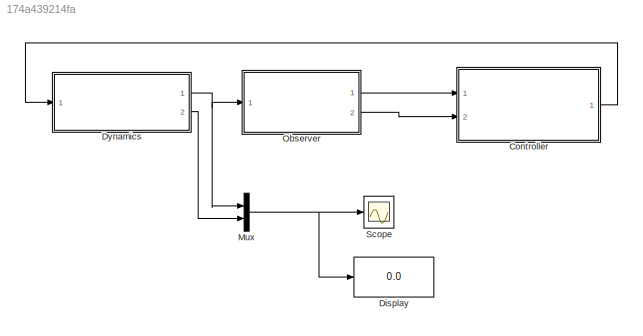
MODEL slx_174a439214fa
KIND model
CONFIG AbsTol = auto
CONFIG EnableMultiTasking = off
CONFIG FixedStep = auto
CONFIG MaxStep = auto
CONFIG MinStep = auto
CONFIG RelTol = 1e-3
CONFIG SampleTimeConstraint = Unconstrained
CONFIG SolverName = VariableStepAuto
CONFIG StartTime = 0.0
CONFIG StopTime = 10.0
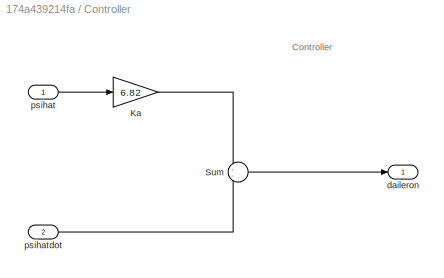
BLOCK [SubSystem] Controller
  Ports = [2, 1]
  RequestExecContextInheritance = off
BLOCK [Gain] Controller/Ka
  Gain = 6.82
BLOCK [Sum] Controller/Sum
  Inputs = --
  Ports = [2, 1]
BLOCK [Outport] Controller/daileron
BLOCK [Inport] Controller/psihat
BLOCK [Inport] Controller/psihatdot
  Port = 2
BLOCK [Display] Display
  Decimation = 1
  Ports = [1]
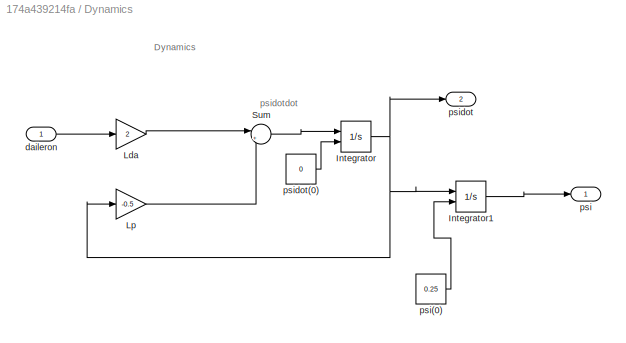
BLOCK [SubSystem] Dynamics
  Ports = [1, 2]
  RequestExecContextInheritance = off
BLOCK [Integrator] Dynamics/Integrator
  InitialConditionSource = external
  Ports = [2, 1]
BLOCK [Integrator] Dynamics/Integrator1
  InitialConditionSource = external
  Ports = [2, 1]
BLOCK [Gain] Dynamics/Lda
  Gain = 2
BLOCK [Gain] Dynamics/Lp
  Gain = -0.5
BLOCK [Sum] Dynamics/Sum
  Inputs = |++
  Ports = [2, 1]
BLOCK [Inport] Dynamics/daileron
BLOCK [Outport] Dynamics/psi
BLOCK [Constant] Dynamics/psi(0)
  Value = 0.25
BLOCK [Outport] Dynamics/psidot
  Port = 2
BLOCK [Constant] Dynamics/psidot(0)
  Value = 0
BLOCK [Mux] Mux
  DisplayOption = bar
  Inputs = 2
  Ports = [2, 1]
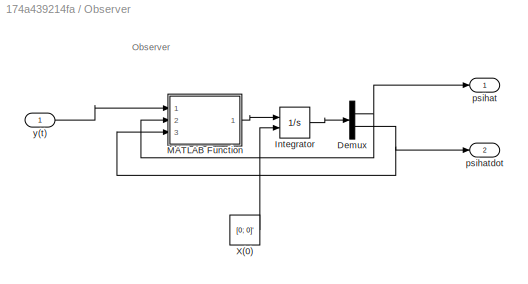
BLOCK [SubSystem] Observer
  Ports = [1, 2]
  RequestExecContextInheritance = off
BLOCK [Demux] Observer/Demux
  Outputs = 2
  Ports = [1, 2]
BLOCK [Integrator] Observer/Integrator
  InitialConditionSource = external
  Ports = [2, 1]
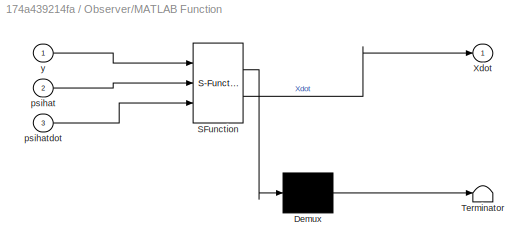
BLOCK [SubSystem] Observer/MATLAB Function
  ErrorFcn = Stateflow.Translate.translate
  PermitHierarchicalResolution = ExplicitOnly
  Ports = [3, 1]
  RequestExecContextInheritance = off
  SFBlockType = MATLAB Function
  TreatAsAtomicUnit = on
BLOCK [Demux] Observer/MATLAB Function/ Demux 
  Outputs = 1
  Ports = [1, 1]
BLOCK [S-Function] Observer/MATLAB Function/ SFunction 
  EnableBusSupport = on
  FunctionName = sf_sfun
  PortCounts = [3 2]
  Ports = [3, 2]
  SFcnIsStateOwnerBlock = off
  SFunctionDeploymentMode = off
  Tag = Stateflow S-Function 2
BLOCK [Terminator] Observer/MATLAB Function/ Terminator 
BLOCK [Outport] Observer/MATLAB Function/Xdot
BLOCK [Inport] Observer/MATLAB Function/psihat
  Port = 2
BLOCK [Inport] Observer/MATLAB Function/psihatdot
  Port = 3
BLOCK [Inport] Observer/MATLAB Function/y
BLOCK [Constant] Observer/X(0)
  Value = [0; 0]'
BLOCK [Outport] Observer/psihat
BLOCK [Outport] Observer/psihatdot
  Port = 2
BLOCK [Inport] Observer/y(t)
BLOCK [Scope] Scope
  Floating = off
  NumInputPorts = 1
  Ports = [1]
  ScopeSpecificationString = Simulink.scopes.TimeScopeBlockCfg('CurrentConfiguration', extmgr.ConfigurationSet(extmgr.Configuration('Core','General UI',true),extmgr.Configuration('Core','Source UI',true),extmgr.Configuration('Sources','WiredSimulink',true),extmgr.Configuration('Visuals','Time Domain',true,'SerializedDisplays',{struct('MinYLimReal','-0.91858','MaxYLimReal','0.58034','YLabelReal','','MinYLimMag','0.00000','MaxY...<+1343ch>
ANNOTATION Controller: Controller
ANNOTATION Dynamics: Dynamics
ANNOTATION Dynamics: psidotdot
ANNOTATION Observer: Observer
LINE Controller/Ka:1 -> Controller/Sum:1
LINE Controller/Sum:1 -> Controller/daileron:1
LINE Controller/psihat:1 -> Controller/Ka:1
LINE Controller/psihatdot:1 -> Controller/Sum:2
LINE Controller:1 -> Dynamics:1
LINE Dynamics/Integrator1:1 -> Dynamics/psi:1
NET Dynamics/Integrator:1 -> Dynamics/Integrator1:1, Dynamics/Lp:1, Dynamics/psidot:1
LINE Dynamics/Lda:1 -> Dynamics/Sum:1
LINE Dynamics/Lp:1 -> Dynamics/Sum:2
LINE Dynamics/Sum:1 -> Dynamics/Integrator:1
LINE Dynamics/daileron:1 -> Dynamics/Lda:1
LINE Dynamics/psi(0):1 -> Dynamics/Integrator1:2
LINE Dynamics/psidot(0):1 -> Dynamics/Integrator:2
NET Dynamics:1 -> Mux:1, Observer:1
LINE Dynamics:2 -> Mux:2
NET Mux:1 -> Display:1, Scope:1
NET Observer/Demux:1 -> Observer/MATLAB Function:2, Observer/psihat:1
NET Observer/Demux:2 -> Observer/MATLAB Function:3, Observer/psihatdot:1
LINE Observer/Integrator:1 -> Observer/Demux:1
LINE Observer/MATLAB Function:1 -> Observer/Integrator:1
LINE Observer/X(0):1 -> Observer/Integrator:2
LINE Observer/y(t):1 -> Observer/MATLAB Function:1
LINE Observer:1 -> Controller:1
LINE Observer:2 -> Controller:2
note: NET lines group one-source signal fan-out (src -> all destinations, sorted); 1:1 wires keep LINE
CHART Observer/MATLAB Function states=1 transitions=1
  STATE_LABEL 'eML_blk_kernel()'
  STATE_LABEL 'SCRIPT:\nfunction Xdot = fcn(y,psihat,psihatdot)\nX = [psihat; psihatdot];\nA = [0 1; -6.82 -1];\nL = [50; 50];\n\nXdot = A*X + L*(y - psihat);\n'
CHART  states=0 transitions=0
